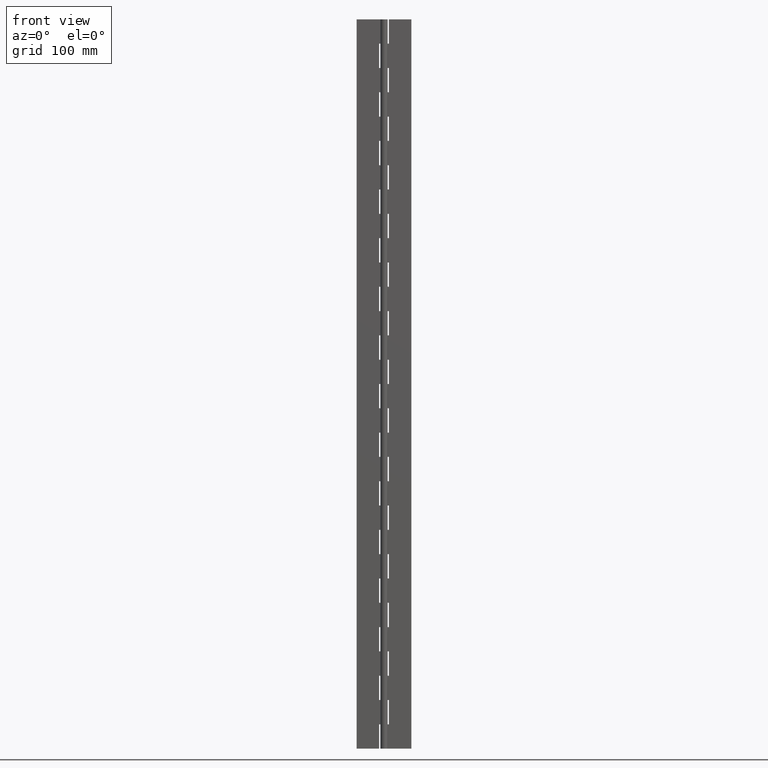
[diagram: clean part render]
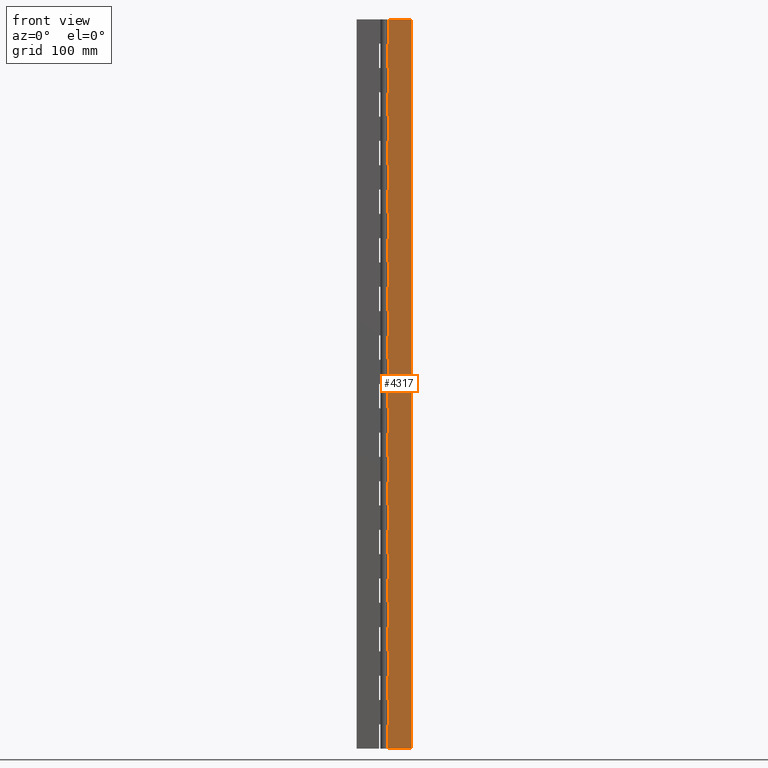
[diagram: same view with one face highlighted and labeled with its STEP entity id]
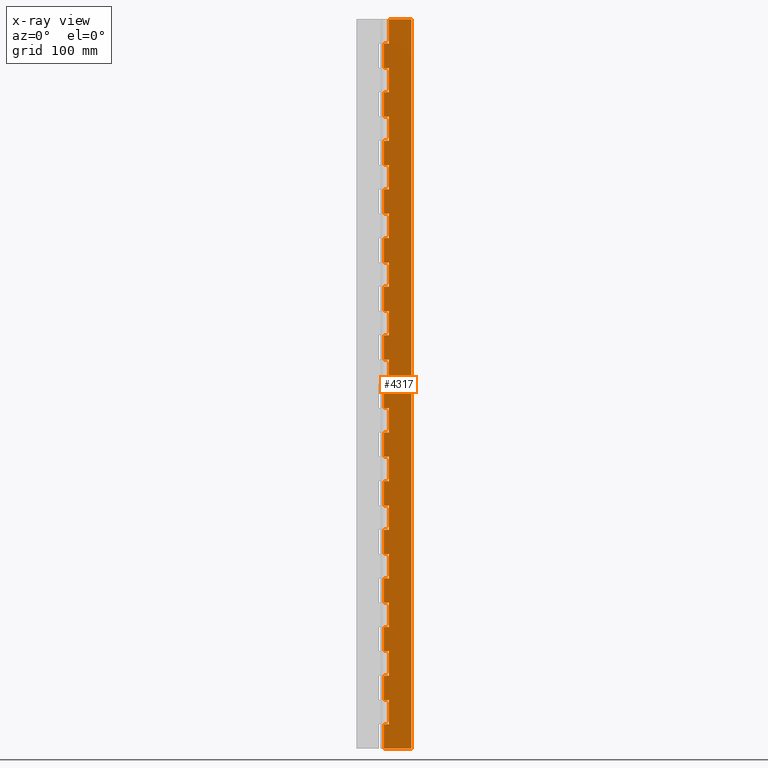
[diagram: x-ray of the same camera — body ghosted, the highlighted face saturated]
A machine part, front view. The second image highlights one B-rep face of the part: STEP entity #4317.
The next image is the same camera in x-ray: the body ghosted, the highlighted face saturated — about 0% of this face is hidden behind the body in this view.
In plain terms, the highlighted face is a freeform B-spline surface patch.
Its self-contained STEP definition (entity closure, byte-faithful):
#330=CARTESIAN_POINT('',(0.0,1.500000000000000,580.0));
#331=VERTEX_POINT('',#330);
#351=CARTESIAN_POINT('',(3.999999999999901,1.499999999999946,580.0));
#352=VERTEX_POINT('',#351);
#353=CARTESIAN_POINT('',(3.999999999999901,1.499999999999946,580.0));
#354=CARTESIAN_POINT('',(0.0,1.500000000000000,580.0));
#355=QUASI_UNIFORM_CURVE('',1,(#353,#354),.UNSPECIFIED.,.F.,.U.);
#356=EDGE_CURVE('',#352,#331,#355,.T.);
#378=CARTESIAN_POINT('',(3.999999999999901,1.500000000000000,600.0));
#379=VERTEX_POINT('',#378);
#393=CARTESIAN_POINT('',(3.999999999999901,1.500000000000000,600.0));
#394=CARTESIAN_POINT('',(3.999999999999901,1.499999999999946,580.0));
#395=QUASI_UNIFORM_CURVE('',1,(#393,#394),.UNSPECIFIED.,.F.,.U.);
#396=EDGE_CURVE('',#379,#352,#395,.T.);
#436=CARTESIAN_POINT('',(0.0,1.500000000000000,540.0));
#437=VERTEX_POINT('',#436);
#457=CARTESIAN_POINT('',(3.999999999999901,1.499999999999946,540.0));
#458=VERTEX_POINT('',#457);
#459=CARTESIAN_POINT('',(3.999999999999901,1.499999999999946,540.0));
#460=CARTESIAN_POINT('',(0.0,1.500000000000000,540.0));
#461=QUASI_UNIFORM_CURVE('',1,(#459,#460),.UNSPECIFIED.,.F.,.U.);
#462=EDGE_CURVE('',#458,#437,#461,.T.);
#493=CARTESIAN_POINT('',(3.999999999999901,1.499999999999946,560.0));
#494=VERTEX_POINT('',#493);
#500=CARTESIAN_POINT('',(0.0,1.500000000000000,560.0));
#501=VERTEX_POINT('',#500);
#502=CARTESIAN_POINT('',(0.0,1.500000000000000,560.0));
#503=CARTESIAN_POINT('',(3.999999999999901,1.499999999999946,560.0));
#504=QUASI_UNIFORM_CURVE('',1,(#502,#503),.UNSPECIFIED.,.F.,.U.);
#505=EDGE_CURVE('',#501,#494,#504,.T.);
#569=CARTESIAN_POINT('',(3.999999999999901,1.499999999999946,560.0));
#570=CARTESIAN_POINT('',(3.999999999999901,1.499999999999946,540.0));
#571=QUASI_UNIFORM_CURVE('',1,(#569,#570),.UNSPECIFIED.,.F.,.U.);
#572=EDGE_CURVE('',#494,#458,#571,.T.);
#612=CARTESIAN_POINT('',(0.0,1.500000000000000,500.0));
#613=VERTEX_POINT('',#612);
#633=CARTESIAN_POINT('',(3.999999999999901,1.499999999999946,500.0));
#634=VERTEX_POINT('',#633);
#635=CARTESIAN_POINT('',(3.999999999999901,1.499999999999946,500.0));
#636=CARTESIAN_POINT('',(0.0,1.500000000000000,500.0));
#637=QUASI_UNIFORM_CURVE('',1,(#635,#636),.UNSPECIFIED.,.F.,.U.);
#638=EDGE_CURVE('',#634,#613,#637,.T.);
#669=CARTESIAN_POINT('',(3.999999999999901,1.499999999999946,520.0));
#670=VERTEX_POINT('',#669);
#676=CARTESIAN_POINT('',(0.0,1.500000000000000,520.0));
#677=VERTEX_POINT('',#676);
#678=CARTESIAN_POINT('',(0.0,1.500000000000000,520.0));
#679=CARTESIAN_POINT('',(3.999999999999901,1.499999999999946,520.0));
#680=QUASI_UNIFORM_CURVE('',1,(#678,#679),.UNSPECIFIED.,.F.,.U.);
#681=EDGE_CURVE('',#677,#670,#680,.T.);
#745=CARTESIAN_POINT('',(3.999999999999901,1.499999999999946,520.0));
#746=CARTESIAN_POINT('',(3.999999999999901,1.499999999999946,500.0));
#747=QUASI_UNIFORM_CURVE('',1,(#745,#746),.UNSPECIFIED.,.F.,.U.);
#748=EDGE_CURVE('',#670,#634,#747,.T.);
#788=CARTESIAN_POINT('',(0.0,1.500000000000000,460.0));
#789=VERTEX_POINT('',#788);
#809=CARTESIAN_POINT('',(3.999999999999901,1.499999999999946,460.0));
#810=VERTEX_POINT('',#809);
#811=CARTESIAN_POINT('',(3.999999999999901,1.499999999999946,460.0));
#812=CARTESIAN_POINT('',(0.0,1.500000000000000,460.0));
#813=QUASI_UNIFORM_CURVE('',1,(#811,#812),.UNSPECIFIED.,.F.,.U.);
#814=EDGE_CURVE('',#810,#789,#813,.T.);
#845=CARTESIAN_POINT('',(3.999999999999901,1.499999999999946,480.0));
#846=VERTEX_POINT('',#845);
#852=CARTESIAN_POINT('',(0.0,1.500000000000000,480.0));
#853=VERTEX_POINT('',#852);
#854=CARTESIAN_POINT('',(0.0,1.500000000000000,480.0));
#855=CARTESIAN_POINT('',(3.999999999999901,1.499999999999946,480.0));
#856=QUASI_UNIFORM_CURVE('',1,(#854,#855),.UNSPECIFIED.,.F.,.U.);
#857=EDGE_CURVE('',#853,#846,#856,.T.);
#921=CARTESIAN_POINT('',(3.999999999999901,1.499999999999946,480.0));
#922=CARTESIAN_POINT('',(3.999999999999901,1.499999999999946,460.0));
#923=QUASI_UNIFORM_CURVE('',1,(#921,#922),.UNSPECIFIED.,.F.,.U.);
#924=EDGE_CURVE('',#846,#810,#923,.T.);
#964=CARTESIAN_POINT('',(0.0,1.500000000000000,420.0));
#965=VERTEX_POINT('',#964);
#985=CARTESIAN_POINT('',(3.999999999999901,1.499999999999946,420.0));
#986=VERTEX_POINT('',#985);
#987=CARTESIAN_POINT('',(3.999999999999901,1.499999999999946,420.0));
#988=CARTESIAN_POINT('',(0.0,1.500000000000000,420.0));
#989=QUASI_UNIFORM_CURVE('',1,(#987,#988),.UNSPECIFIED.,.F.,.U.);
#990=EDGE_CURVE('',#986,#965,#989,.T.);
#1021=CARTESIAN_POINT('',(3.999999999999901,1.499999999999946,440.0));
#1022=VERTEX_POINT('',#1021);
#1028=CARTESIAN_POINT('',(0.0,1.500000000000000,440.0));
#1029=VERTEX_POINT('',#1028);
#1030=CARTESIAN_POINT('',(0.0,1.500000000000000,440.0));
#1031=CARTESIAN_POINT('',(3.999999999999901,1.499999999999946,440.0));
#1032=QUASI_UNIFORM_CURVE('',1,(#1030,#1031),.UNSPECIFIED.,.F.,.U.);
#1033=EDGE_CURVE('',#1029,#1022,#1032,.T.);
#1097=CARTESIAN_POINT('',(3.999999999999901,1.499999999999946,440.0));
#1098=CARTESIAN_POINT('',(3.999999999999901,1.499999999999946,420.0));
#1099=QUASI_UNIFORM_CURVE('',1,(#1097,#1098),.UNSPECIFIED.,.F.,.U.);
#1100=EDGE_CURVE('',#1022,#986,#1099,.T.);
#1140=CARTESIAN_POINT('',(0.0,1.500000000000000,380.0));
#1141=VERTEX_POINT('',#1140);
#1161=CARTESIAN_POINT('',(3.999999999999901,1.499999999999946,380.0));
#1162=VERTEX_POINT('',#1161);
#1163=CARTESIAN_POINT('',(3.999999999999901,1.499999999999946,380.0));
#1164=CARTESIAN_POINT('',(0.0,1.500000000000000,380.0));
#1165=QUASI_UNIFORM_CURVE('',1,(#1163,#1164),.UNSPECIFIED.,.F.,.U.);
#1166=EDGE_CURVE('',#1162,#1141,#1165,.T.);
#1197=CARTESIAN_POINT('',(3.999999999999901,1.499999999999946,400.0));
#1198=VERTEX_POINT('',#1197);
#1204=CARTESIAN_POINT('',(0.0,1.500000000000000,400.0));
#1205=VERTEX_POINT('',#1204);
#1206=CARTESIAN_POINT('',(0.0,1.500000000000000,400.0));
#1207=CARTESIAN_POINT('',(3.999999999999901,1.499999999999946,400.0));
#1208=QUASI_UNIFORM_CURVE('',1,(#1206,#1207),.UNSPECIFIED.,.F.,.U.);
#1209=EDGE_CURVE('',#1205,#1198,#1208,.T.);
#1273=CARTESIAN_POINT('',(3.999999999999901,1.499999999999946,400.0));
#1274=CARTESIAN_POINT('',(3.999999999999901,1.499999999999946,380.0));
#1275=QUASI_UNIFORM_CURVE('',1,(#1273,#1274),.UNSPECIFIED.,.F.,.U.);
#1276=EDGE_CURVE('',#1198,#1162,#1275,.T.);
#1316=CARTESIAN_POINT('',(0.0,1.500000000000000,340.0));
#1317=VERTEX_POINT('',#1316);
#1337=CARTESIAN_POINT('',(3.999999999999901,1.499999999999946,340.0));
#1338=VERTEX_POINT('',#1337);
#1339=CARTESIAN_POINT('',(3.999999999999901,1.499999999999946,340.0));
#1340=CARTESIAN_POINT('',(0.0,1.500000000000000,340.0));
#1341=QUASI_UNIFORM_CURVE('',1,(#1339,#1340),.UNSPECIFIED.,.F.,.U.);
#1342=EDGE_CURVE('',#1338,#1317,#1341,.T.);
#1373=CARTESIAN_POINT('',(3.999999999999901,1.499999999999946,360.0));
#1374=VERTEX_POINT('',#1373);
#1380=CARTESIAN_POINT('',(0.0,1.500000000000000,360.0));
#1381=VERTEX_POINT('',#1380);
#1382=CARTESIAN_POINT('',(0.0,1.500000000000000,360.0));
#1383=CARTESIAN_POINT('',(3.999999999999901,1.499999999999946,360.0));
#1384=QUASI_UNIFORM_CURVE('',1,(#1382,#1383),.UNSPECIFIED.,.F.,.U.);
#1385=EDGE_CURVE('',#1381,#1374,#1384,.T.);
#1449=CARTESIAN_POINT('',(3.999999999999901,1.499999999999946,360.0));
#1450=CARTESIAN_POINT('',(3.999999999999901,1.499999999999946,340.0));
#1451=QUASI_UNIFORM_CURVE('',1,(#1449,#1450),.UNSPECIFIED.,.F.,.U.);
#1452=EDGE_CURVE('',#1374,#1338,#1451,.T.);
#1492=CARTESIAN_POINT('',(0.0,1.500000000000000,300.0));
#1493=VERTEX_POINT('',#1492);
#1513=CARTESIAN_POINT('',(3.999999999999901,1.499999999999946,300.0));
#1514=VERTEX_POINT('',#1513);
#1515=CARTESIAN_POINT('',(3.999999999999901,1.499999999999946,300.0));
#1516=CARTESIAN_POINT('',(0.0,1.500000000000000,300.0));
#1517=QUASI_UNIFORM_CURVE('',1,(#1515,#1516),.UNSPECIFIED.,.F.,.U.);
#1518=EDGE_CURVE('',#1514,#1493,#1517,.T.);
#1549=CARTESIAN_POINT('',(3.999999999999901,1.499999999999946,320.0));
#1550=VERTEX_POINT('',#1549);
#1556=CARTESIAN_POINT('',(0.0,1.500000000000000,320.0));
#1557=VERTEX_POINT('',#1556);
#1558=CARTESIAN_POINT('',(0.0,1.500000000000000,320.0));
#1559=CARTESIAN_POINT('',(3.999999999999901,1.499999999999946,320.0));
#1560=QUASI_UNIFORM_CURVE('',1,(#1558,#1559),.UNSPECIFIED.,.F.,.U.);
#1561=EDGE_CURVE('',#1557,#1550,#1560,.T.);
#1625=CARTESIAN_POINT('',(3.999999999999901,1.499999999999946,320.0));
#1626=CARTESIAN_POINT('',(3.999999999999901,1.499999999999946,300.0));
#1627=QUASI_UNIFORM_CURVE('',1,(#1625,#1626),.UNSPECIFIED.,.F.,.U.);
#1628=EDGE_CURVE('',#1550,#1514,#1627,.T.);
#1668=CARTESIAN_POINT('',(0.0,1.500000000000000,260.0));
#1669=VERTEX_POINT('',#1668);
#1689=CARTESIAN_POINT('',(3.999999999999901,1.499999999999946,260.0));
#1690=VERTEX_POINT('',#1689);
#1691=CARTESIAN_POINT('',(3.999999999999901,1.499999999999946,260.0));
#1692=CARTESIAN_POINT('',(0.0,1.500000000000000,260.0));
#1693=QUASI_UNIFORM_CURVE('',1,(#1691,#1692),.UNSPECIFIED.,.F.,.U.);
#1694=EDGE_CURVE('',#1690,#1669,#1693,.T.);
#1725=CARTESIAN_POINT('',(3.999999999999901,1.499999999999946,280.0));
#1726=VERTEX_POINT('',#1725);
#1732=CARTESIAN_POINT('',(0.0,1.500000000000000,280.0));
#1733=VERTEX_POINT('',#1732);
#1734=CARTESIAN_POINT('',(0.0,1.500000000000000,280.0));
#1735=CARTESIAN_POINT('',(3.999999999999901,1.499999999999946,280.0));
#1736=QUASI_UNIFORM_CURVE('',1,(#1734,#1735),.UNSPECIFIED.,.F.,.U.);
#1737=EDGE_CURVE('',#1733,#1726,#1736,.T.);
#1801=CARTESIAN_POINT('',(3.999999999999901,1.499999999999946,280.0));
#1802=CARTESIAN_POINT('',(3.999999999999901,1.499999999999946,260.0));
#1803=QUASI_UNIFORM_CURVE('',1,(#1801,#1802),.UNSPECIFIED.,.F.,.U.);
#1804=EDGE_CURVE('',#1726,#1690,#1803,.T.);
#1844=CARTESIAN_POINT('',(0.0,1.500000000000000,220.0));
#1845=VERTEX_POINT('',#1844);
#1865=CARTESIAN_POINT('',(3.999999999999901,1.499999999999946,220.0));
#1866=VERTEX_POINT('',#1865);
#1867=CARTESIAN_POINT('',(3.999999999999901,1.499999999999946,220.0));
#1868=CARTESIAN_POINT('',(0.0,1.500000000000000,220.0));
#1869=QUASI_UNIFORM_CURVE('',1,(#1867,#1868),.UNSPECIFIED.,.F.,.U.);
#1870=EDGE_CURVE('',#1866,#1845,#1869,.T.);
#1901=CARTESIAN_POINT('',(3.999999999999901,1.499999999999946,240.0));
#1902=VERTEX_POINT('',#1901);
#1908=CARTESIAN_POINT('',(0.0,1.500000000000000,240.0));
#1909=VERTEX_POINT('',#1908);
#1910=CARTESIAN_POINT('',(0.0,1.500000000000000,240.0));
#1911=CARTESIAN_POINT('',(3.999999999999901,1.499999999999946,240.0));
#1912=QUASI_UNIFORM_CURVE('',1,(#1910,#1911),.UNSPECIFIED.,.F.,.U.);
#1913=EDGE_CURVE('',#1909,#1902,#1912,.T.);
#1977=CARTESIAN_POINT('',(3.999999999999901,1.499999999999946,240.0));
#1978=CARTESIAN_POINT('',(3.999999999999901,1.499999999999946,220.0));
#1979=QUASI_UNIFORM_CURVE('',1,(#1977,#1978),.UNSPECIFIED.,.F.,.U.);
#1980=EDGE_CURVE('',#1902,#1866,#1979,.T.);
#2020=CARTESIAN_POINT('',(0.0,1.500000000000000,180.0));
#2021=VERTEX_POINT('',#2020);
#2041=CARTESIAN_POINT('',(3.999999999999901,1.499999999999946,180.0));
#2042=VERTEX_POINT('',#2041);
#2043=CARTESIAN_POINT('',(3.999999999999901,1.499999999999946,180.0));
#2044=CARTESIAN_POINT('',(0.0,1.500000000000000,180.0));
#2045=QUASI_UNIFORM_CURVE('',1,(#2043,#2044),.UNSPECIFIED.,.F.,.U.);
#2046=EDGE_CURVE('',#2042,#2021,#2045,.T.);
#2077=CARTESIAN_POINT('',(3.999999999999901,1.499999999999946,200.0));
#2078=VERTEX_POINT('',#2077);
#2084=CARTESIAN_POINT('',(0.0,1.500000000000000,200.0));
#2085=VERTEX_POINT('',#2084);
#2086=CARTESIAN_POINT('',(0.0,1.500000000000000,200.0));
#2087=CARTESIAN_POINT('',(3.999999999999901,1.499999999999946,200.0));
#2088=QUASI_UNIFORM_CURVE('',1,(#2086,#2087),.UNSPECIFIED.,.F.,.U.);
#2089=EDGE_CURVE('',#2085,#2078,#2088,.T.);
#2153=CARTESIAN_POINT('',(3.999999999999901,1.499999999999946,200.0));
#2154=CARTESIAN_POINT('',(3.999999999999901,1.499999999999946,180.0));
#2155=QUASI_UNIFORM_CURVE('',1,(#2153,#2154),.UNSPECIFIED.,.F.,.U.);
#2156=EDGE_CURVE('',#2078,#2042,#2155,.T.);
#2196=CARTESIAN_POINT('',(0.0,1.500000000000000,140.0));
#2197=VERTEX_POINT('',#2196);
#2217=CARTESIAN_POINT('',(3.999999999999901,1.499999999999946,140.0));
#2218=VERTEX_POINT('',#2217);
#2219=CARTESIAN_POINT('',(3.999999999999901,1.499999999999946,140.0));
#2220=CARTESIAN_POINT('',(0.0,1.500000000000000,140.0));
#2221=QUASI_UNIFORM_CURVE('',1,(#2219,#2220),.UNSPECIFIED.,.F.,.U.);
#2222=EDGE_CURVE('',#2218,#2197,#2221,.T.);
#2253=CARTESIAN_POINT('',(3.999999999999901,1.499999999999946,160.0));
#2254=VERTEX_POINT('',#2253);
#2260=CARTESIAN_POINT('',(0.0,1.500000000000000,160.0));
#2261=VERTEX_POINT('',#2260);
#2262=CARTESIAN_POINT('',(0.0,1.500000000000000,160.0));
#2263=CARTESIAN_POINT('',(3.999999999999901,1.499999999999946,160.0));
#2264=QUASI_UNIFORM_CURVE('',1,(#2262,#2263),.UNSPECIFIED.,.F.,.U.);
#2265=EDGE_CURVE('',#2261,#2254,#2264,.T.);
#2329=CARTESIAN_POINT('',(3.999999999999901,1.499999999999946,160.0));
#2330=CARTESIAN_POINT('',(3.999999999999901,1.499999999999946,140.0));
#2331=QUASI_UNIFORM_CURVE('',1,(#2329,#2330),.UNSPECIFIED.,.F.,.U.);
#2332=EDGE_CURVE('',#2254,#2218,#2331,.T.);
#2372=CARTESIAN_POINT('',(0.0,1.500000000000000,100.0));
#2373=VERTEX_POINT('',#2372);
#2393=CARTESIAN_POINT('',(3.999999999999901,1.499999999999946,100.0));
#2394=VERTEX_POINT('',#2393);
#2395=CARTESIAN_POINT('',(3.999999999999901,1.499999999999946,100.0));
#2396=CARTESIAN_POINT('',(0.0,1.500000000000000,100.0));
#2397=QUASI_UNIFORM_CURVE('',1,(#2395,#2396),.UNSPECIFIED.,.F.,.U.);
#2398=EDGE_CURVE('',#2394,#2373,#2397,.T.);
#2429=CARTESIAN_POINT('',(3.999999999999901,1.499999999999946,120.0));
#2430=VERTEX_POINT('',#2429);
#2436=CARTESIAN_POINT('',(0.0,1.500000000000000,120.0));
#2437=VERTEX_POINT('',#2436);
#2438=CARTESIAN_POINT('',(0.0,1.500000000000000,120.0));
#2439=CARTESIAN_POINT('',(3.999999999999901,1.499999999999946,120.0));
#2440=QUASI_UNIFORM_CURVE('',1,(#2438,#2439),.UNSPECIFIED.,.F.,.U.);
#2441=EDGE_CURVE('',#2437,#2430,#2440,.T.);
#2505=CARTESIAN_POINT('',(3.999999999999901,1.499999999999946,120.0));
#2506=CARTESIAN_POINT('',(3.999999999999901,1.499999999999946,100.0));
#2507=QUASI_UNIFORM_CURVE('',1,(#2505,#2506),.UNSPECIFIED.,.F.,.U.);
#2508=EDGE_CURVE('',#2430,#2394,#2507,.T.);
#2548=CARTESIAN_POINT('',(0.0,1.500000000000000,60.0));
#2549=VERTEX_POINT('',#2548);
#2569=CARTESIAN_POINT('',(3.999999999999901,1.499999999999946,60.0));
#2570=VERTEX_POINT('',#2569);
#2571=CARTESIAN_POINT('',(3.999999999999901,1.499999999999946,60.0));
#2572=CARTESIAN_POINT('',(0.0,1.500000000000000,60.0));
#2573=QUASI_UNIFORM_CURVE('',1,(#2571,#2572),.UNSPECIFIED.,.F.,.U.);
#2574=EDGE_CURVE('',#2570,#2549,#2573,.T.);
#2605=CARTESIAN_POINT('',(3.999999999999901,1.499999999999946,80.0));
#2606=VERTEX_POINT('',#2605);
#2612=CARTESIAN_POINT('',(0.0,1.500000000000000,80.0));
#2613=VERTEX_POINT('',#2612);
#2614=CARTESIAN_POINT('',(0.0,1.500000000000000,80.0));
#2615=CARTESIAN_POINT('',(3.999999999999901,1.499999999999946,80.0));
#2616=QUASI_UNIFORM_CURVE('',1,(#2614,#2615),.UNSPECIFIED.,.F.,.U.);
#2617=EDGE_CURVE('',#2613,#2606,#2616,.T.);
#2681=CARTESIAN_POINT('',(3.999999999999901,1.499999999999946,80.0));
#2682=CARTESIAN_POINT('',(3.999999999999901,1.499999999999946,60.0));
#2683=QUASI_UNIFORM_CURVE('',1,(#2681,#2682),.UNSPECIFIED.,.F.,.U.);
#2684=EDGE_CURVE('',#2606,#2570,#2683,.T.);
#2724=CARTESIAN_POINT('',(0.0,1.500000000000000,20.0));
#2725=VERTEX_POINT('',#2724);
#2745=CARTESIAN_POINT('',(3.999999999999901,1.499999999999946,20.0));
#2746=VERTEX_POINT('',#2745);
#2747=CARTESIAN_POINT('',(3.999999999999901,1.499999999999946,20.0));
#2748=CARTESIAN_POINT('',(0.0,1.500000000000000,20.0));
#2749=QUASI_UNIFORM_CURVE('',1,(#2747,#2748),.UNSPECIFIED.,.F.,.U.);
#2750=EDGE_CURVE('',#2746,#2725,#2749,.T.);
#2781=CARTESIAN_POINT('',(3.999999999999901,1.499999999999946,40.0));
#2782=VERTEX_POINT('',#2781);
#2788=CARTESIAN_POINT('',(0.0,1.500000000000000,40.0));
#2789=VERTEX_POINT('',#2788);
#2790=CARTESIAN_POINT('',(0.0,1.500000000000000,40.0));
#2791=CARTESIAN_POINT('',(3.999999999999901,1.499999999999946,40.0));
#2792=QUASI_UNIFORM_CURVE('',1,(#2790,#2791),.UNSPECIFIED.,.F.,.U.);
#2793=EDGE_CURVE('',#2789,#2782,#2792,.T.);
#2857=CARTESIAN_POINT('',(3.999999999999901,1.499999999999946,40.0));
#2858=CARTESIAN_POINT('',(3.999999999999901,1.499999999999946,20.0));
#2859=QUASI_UNIFORM_CURVE('',1,(#2857,#2858),.UNSPECIFIED.,.F.,.U.);
#2860=EDGE_CURVE('',#2782,#2746,#2859,.T.);
#2900=CARTESIAN_POINT('',(22.500000000000000,1.500000000000000,0.0));
#2901=VERTEX_POINT('',#2900);
#2907=CARTESIAN_POINT('',(0.0,1.500000000000000,0.0));
#2908=VERTEX_POINT('',#2907);
#2909=CARTESIAN_POINT('',(22.500000000000000,1.500000000000000,0.0));
#2910=CARTESIAN_POINT('',(0.0,1.500000000000000,0.0));
#2911=QUASI_UNIFORM_CURVE('',1,(#2909,#2910),.UNSPECIFIED.,.F.,.U.);
#2912=EDGE_CURVE('',#2901,#2908,#2911,.T.);
#2956=CARTESIAN_POINT('',(22.500000000000000,1.500000000000000,600.0));
#2957=VERTEX_POINT('',#2956);
#2963=CARTESIAN_POINT('',(22.500000000000000,1.500000000000000,600.0));
#2964=CARTESIAN_POINT('',(22.500000000000000,1.500000000000000,0.0));
#2965=QUASI_UNIFORM_CURVE('',1,(#2963,#2964),.UNSPECIFIED.,.F.,.U.);
#2966=EDGE_CURVE('',#2957,#2901,#2965,.T.);
#3016=CARTESIAN_POINT('',(0.0,1.500000000000000,20.0));
#3017=CARTESIAN_POINT('',(0.0,1.500000000000000,0.0));
#3018=QUASI_UNIFORM_CURVE('',1,(#3016,#3017),.UNSPECIFIED.,.F.,.U.);
#3019=EDGE_CURVE('',#2725,#2908,#3018,.T.);
#3102=CARTESIAN_POINT('',(0.0,1.500000000000000,60.0));
#3103=CARTESIAN_POINT('',(0.0,1.500000000000000,40.0));
#3104=QUASI_UNIFORM_CURVE('',1,(#3102,#3103),.UNSPECIFIED.,.F.,.U.);
#3105=EDGE_CURVE('',#2549,#2789,#3104,.T.);
#3188=CARTESIAN_POINT('',(0.0,1.500000000000000,100.0));
#3189=CARTESIAN_POINT('',(0.0,1.500000000000000,80.0));
#3190=QUASI_UNIFORM_CURVE('',1,(#3188,#3189),.UNSPECIFIED.,.F.,.U.);
#3191=EDGE_CURVE('',#2373,#2613,#3190,.T.);
#3274=CARTESIAN_POINT('',(0.0,1.500000000000000,140.0));
#3275=CARTESIAN_POINT('',(0.0,1.500000000000000,120.0));
#3276=QUASI_UNIFORM_CURVE('',1,(#3274,#3275),.UNSPECIFIED.,.F.,.U.);
#3277=EDGE_CURVE('',#2197,#2437,#3276,.T.);
#3360=CARTESIAN_POINT('',(0.0,1.500000000000000,180.0));
#3361=CARTESIAN_POINT('',(0.0,1.500000000000000,160.0));
#3362=QUASI_UNIFORM_CURVE('',1,(#3360,#3361),.UNSPECIFIED.,.F.,.U.);
#3363=EDGE_CURVE('',#2021,#2261,#3362,.T.);
#3446=CARTESIAN_POINT('',(0.0,1.500000000000000,220.0));
#3447=CARTESIAN_POINT('',(0.0,1.500000000000000,200.0));
#3448=QUASI_UNIFORM_CURVE('',1,(#3446,#3447),.UNSPECIFIED.,.F.,.U.);
#3449=EDGE_CURVE('',#1845,#2085,#3448,.T.);
#3532=CARTESIAN_POINT('',(0.0,1.500000000000000,260.0));
#3533=CARTESIAN_POINT('',(0.0,1.500000000000000,240.0));
#3534=QUASI_UNIFORM_CURVE('',1,(#3532,#3533),.UNSPECIFIED.,.F.,.U.);
#3535=EDGE_CURVE('',#1669,#1909,#3534,.T.);
#3618=CARTESIAN_POINT('',(0.0,1.500000000000000,300.0));
#3619=CARTESIAN_POINT('',(0.0,1.500000000000000,280.0));
#3620=QUASI_UNIFORM_CURVE('',1,(#3618,#3619),.UNSPECIFIED.,.F.,.U.);
#3621=EDGE_CURVE('',#1493,#1733,#3620,.T.);
#3704=CARTESIAN_POINT('',(0.0,1.500000000000000,340.0));
#3705=CARTESIAN_POINT('',(0.0,1.500000000000000,320.0));
#3706=QUASI_UNIFORM_CURVE('',1,(#3704,#3705),.UNSPECIFIED.,.F.,.U.);
#3707=EDGE_CURVE('',#1317,#1557,#3706,.T.);
#3790=CARTESIAN_POINT('',(0.0,1.500000000000000,380.0));
#3791=CARTESIAN_POINT('',(0.0,1.500000000000000,360.0));
#3792=QUASI_UNIFORM_CURVE('',1,(#3790,#3791),.UNSPECIFIED.,.F.,.U.);
#3793=EDGE_CURVE('',#1141,#1381,#3792,.T.);
#3876=CARTESIAN_POINT('',(0.0,1.500000000000000,420.0));
#3877=CARTESIAN_POINT('',(0.0,1.500000000000000,400.0));
#3878=QUASI_UNIFORM_CURVE('',1,(#3876,#3877),.UNSPECIFIED.,.F.,.U.);
#3879=EDGE_CURVE('',#965,#1205,#3878,.T.);
#3962=CARTESIAN_POINT('',(0.0,1.500000000000000,460.0));
#3963=CARTESIAN_POINT('',(0.0,1.500000000000000,440.0));
#3964=QUASI_UNIFORM_CURVE('',1,(#3962,#3963),.UNSPECIFIED.,.F.,.U.);
#3965=EDGE_CURVE('',#789,#1029,#3964,.T.);
#4048=CARTESIAN_POINT('',(0.0,1.500000000000000,500.0));
#4049=CARTESIAN_POINT('',(0.0,1.500000000000000,480.0));
#4050=QUASI_UNIFORM_CURVE('',1,(#4048,#4049),.UNSPECIFIED.,.F.,.U.);
#4051=EDGE_CURVE('',#613,#853,#4050,.T.);
#4134=CARTESIAN_POINT('',(0.0,1.500000000000000,540.0));
#4135=CARTESIAN_POINT('',(0.0,1.500000000000000,520.0));
#4136=QUASI_UNIFORM_CURVE('',1,(#4134,#4135),.UNSPECIFIED.,.F.,.U.);
#4137=EDGE_CURVE('',#437,#677,#4136,.T.);
#4181=CARTESIAN_POINT('',(22.500000000000000,1.500000000000000,600.0));
#4182=CARTESIAN_POINT('',(3.999999999999901,1.500000000000000,600.0));
#4183=QUASI_UNIFORM_CURVE('',1,(#4181,#4182),.UNSPECIFIED.,.F.,.U.);
#4184=EDGE_CURVE('',#2957,#379,#4183,.T.);
#4240=CARTESIAN_POINT('',(0.0,1.500000000000000,580.0));
#4241=CARTESIAN_POINT('',(0.0,1.500000000000000,560.0));
#4242=QUASI_UNIFORM_CURVE('',1,(#4240,#4241),.UNSPECIFIED.,.F.,.U.);
#4243=EDGE_CURVE('',#331,#501,#4242,.T.);
#4248=CARTESIAN_POINT('',(-1.123874956390635,1.500000000000000,629.969998837083610));
#4249=CARTESIAN_POINT('',(-1.123874956390635,1.500000000000000,-29.970014930337669));
#4250=CARTESIAN_POINT('',(23.623875559887662,1.500000000000000,629.969998837083610));
#4251=CARTESIAN_POINT('',(23.623875559887662,1.500000000000000,-29.970014930337669));
#4252=B_SPLINE_SURFACE_WITH_KNOTS('',1,1,((#4248,#4250),(#4249,#4251)),.UNSPECIFIED.,.F.,.F.,.U.,(2,2),(2,2),(0.0,659.940013767421310),(0.0,24.747750516278298),.UNSPECIFIED.);
#4253=ORIENTED_EDGE('',*,*,#4184,.T.);
#4254=ORIENTED_EDGE('',*,*,#396,.T.);
#4255=ORIENTED_EDGE('',*,*,#356,.T.);
#4256=ORIENTED_EDGE('',*,*,#4243,.T.);
#4257=ORIENTED_EDGE('',*,*,#505,.T.);
#4258=ORIENTED_EDGE('',*,*,#572,.T.);
#4259=ORIENTED_EDGE('',*,*,#462,.T.);
#4260=ORIENTED_EDGE('',*,*,#4137,.T.);
#4261=ORIENTED_EDGE('',*,*,#681,.T.);
#4262=ORIENTED_EDGE('',*,*,#748,.T.);
#4263=ORIENTED_EDGE('',*,*,#638,.T.);
#4264=ORIENTED_EDGE('',*,*,#4051,.T.);
#4265=ORIENTED_EDGE('',*,*,#857,.T.);
#4266=ORIENTED_EDGE('',*,*,#924,.T.);
#4267=ORIENTED_EDGE('',*,*,#814,.T.);
#4268=ORIENTED_EDGE('',*,*,#3965,.T.);
#4269=ORIENTED_EDGE('',*,*,#1033,.T.);
#4270=ORIENTED_EDGE('',*,*,#1100,.T.);
#4271=ORIENTED_EDGE('',*,*,#990,.T.);
#4272=ORIENTED_EDGE('',*,*,#3879,.T.);
#4273=ORIENTED_EDGE('',*,*,#1209,.T.);
#4274=ORIENTED_EDGE('',*,*,#1276,.T.);
#4275=ORIENTED_EDGE('',*,*,#1166,.T.);
#4276=ORIENTED_EDGE('',*,*,#3793,.T.);
#4277=ORIENTED_EDGE('',*,*,#1385,.T.);
#4278=ORIENTED_EDGE('',*,*,#1452,.T.);
#4279=ORIENTED_EDGE('',*,*,#1342,.T.);
#4280=ORIENTED_EDGE('',*,*,#3707,.T.);
#4281=ORIENTED_EDGE('',*,*,#1561,.T.);
#4282=ORIENTED_EDGE('',*,*,#1628,.T.);
#4283=ORIENTED_EDGE('',*,*,#1518,.T.);
#4284=ORIENTED_EDGE('',*,*,#3621,.T.);
#4285=ORIENTED_EDGE('',*,*,#1737,.T.);
#4286=ORIENTED_EDGE('',*,*,#1804,.T.);
#4287=ORIENTED_EDGE('',*,*,#1694,.T.);
#4288=ORIENTED_EDGE('',*,*,#3535,.T.);
#4289=ORIENTED_EDGE('',*,*,#1913,.T.);
#4290=ORIENTED_EDGE('',*,*,#1980,.T.);
#4291=ORIENTED_EDGE('',*,*,#1870,.T.);
#4292=ORIENTED_EDGE('',*,*,#3449,.T.);
#4293=ORIENTED_EDGE('',*,*,#2089,.T.);
#4294=ORIENTED_EDGE('',*,*,#2156,.T.);
#4295=ORIENTED_EDGE('',*,*,#2046,.T.);
#4296=ORIENTED_EDGE('',*,*,#3363,.T.);
#4297=ORIENTED_EDGE('',*,*,#2265,.T.);
#4298=ORIENTED_EDGE('',*,*,#2332,.T.);
#4299=ORIENTED_EDGE('',*,*,#2222,.T.);
#4300=ORIENTED_EDGE('',*,*,#3277,.T.);
#4301=ORIENTED_EDGE('',*,*,#2441,.T.);
#4302=ORIENTED_EDGE('',*,*,#2508,.T.);
#4303=ORIENTED_EDGE('',*,*,#2398,.T.);
#4304=ORIENTED_EDGE('',*,*,#3191,.T.);
#4305=ORIENTED_EDGE('',*,*,#2617,.T.);
#4306=ORIENTED_EDGE('',*,*,#2684,.T.);
#4307=ORIENTED_EDGE('',*,*,#2574,.T.);
#4308=ORIENTED_EDGE('',*,*,#3105,.T.);
#4309=ORIENTED_EDGE('',*,*,#2793,.T.);
#4310=ORIENTED_EDGE('',*,*,#2860,.T.);
#4311=ORIENTED_EDGE('',*,*,#2750,.T.);
#4312=ORIENTED_EDGE('',*,*,#3019,.T.);
#4313=ORIENTED_EDGE('',*,*,#2912,.F.);
#4314=ORIENTED_EDGE('',*,*,#2966,.F.);
#4315=EDGE_LOOP('',(#4253,#4254,#4255,#4256,#4257,#4258,#4259,#4260,#4261,#4262,#4263,#4264,#4265,#4266,#4267,#4268,#4269,#4270,#4271,#4272,#4273,#4274,#4275,#4276,#4277,#4278,#4279,#4280,#4281,#4282,#4283,#4284,#4285,#4286,#4287,#4288,#4289,#4290,#4291,#4292,#4293,#4294,#4295,#4296,#4297,#4298,#4299,#4300,#4301,#4302,#4303,#4304,#4305,#4306,#4307,#4308,#4309,#4310,#4311,#4312,#4313,#4314));
#4316=FACE_OUTER_BOUND('',#4315,.T.);
#4317=ADVANCED_FACE('',(#4316),#4252,.T.);